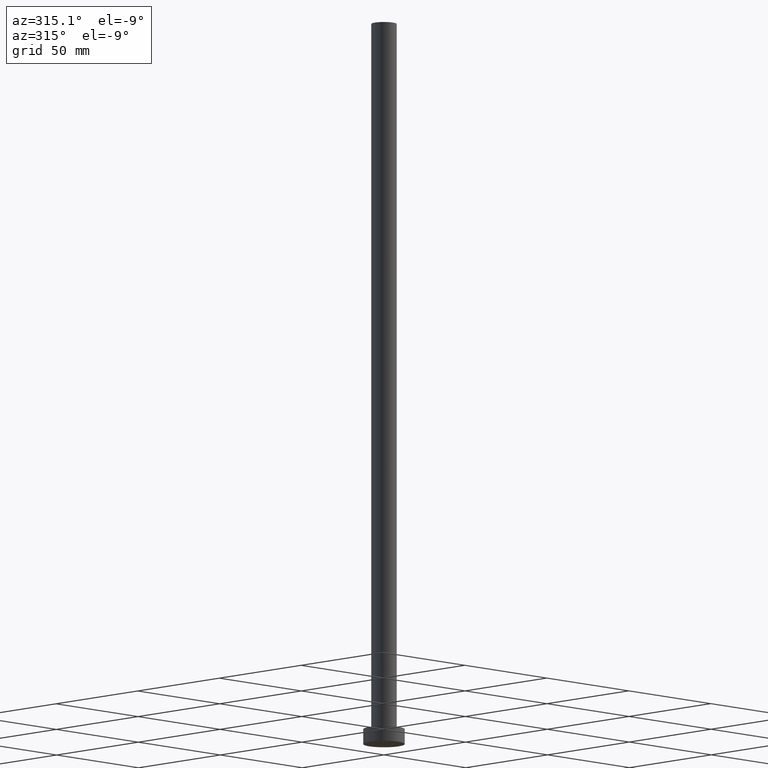
[diagram: clean part render]
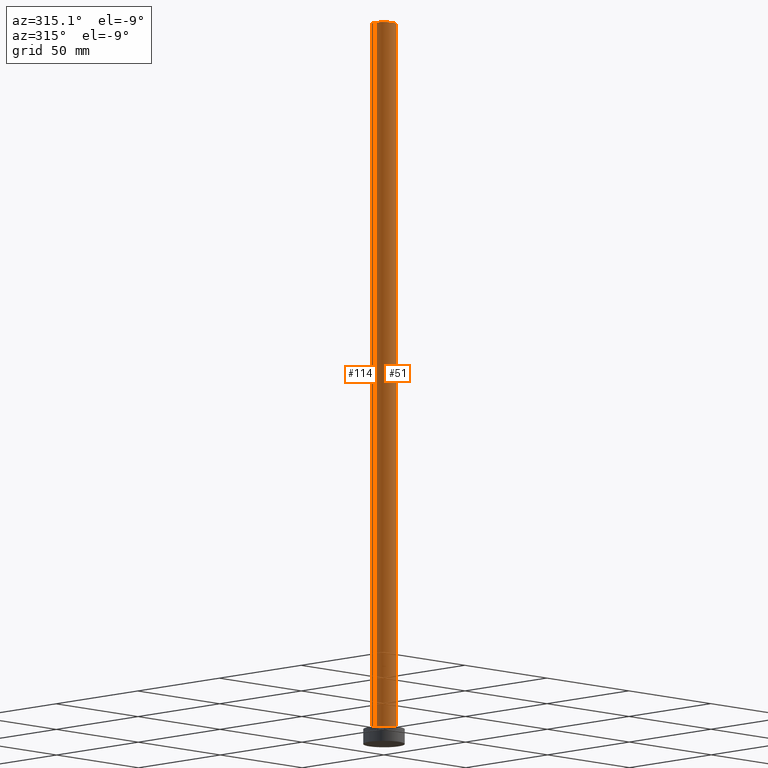
[diagram: same view with one multi-face feature highlighted, each face labeled with its STEP entity id]
A machine part, auxiliary view. The highlighted faces form ONE feature: a constant-radius fillet chain: 2 tangent blend faces with common blend radius 5.5 mm. The faces share edges in the B-rep.
Their STEP definitions:
[1] entity #51 (Cylinder):
#1 = CARTESIAN_POINT ( 'NONE',  ( 5.500000000000000000, 6.735557395310441037E-16, 315.0000000000000000 ) ) ;
#2 = CYLINDRICAL_SURFACE ( 'NONE', #96, 5.500000000000000000 ) ;
#8 = CARTESIAN_POINT ( 'NONE',  ( 0.000000000000000000, 0.000000000000000000, 315.0000000000000000 ) ) ;
#24 = EDGE_CURVE ( 'NONE', #101, #212, #144, .T. ) ;
#27 = CARTESIAN_POINT ( 'NONE',  ( -5.500000000000000000, 0.000000000000000000, 315.0000000000000000 ) ) ;
#36 = ORIENTED_EDGE ( 'NONE', *, *, #111, .F. ) ;
#46 = CARTESIAN_POINT ( 'NONE',  ( 5.500000000000000000, 6.735557395310441037E-16, 315.0000000000000000 ) ) ;
#51 = ADVANCED_FACE ( 'NONE', ( #77 ), #2, .T. ) ;
#56 = EDGE_LOOP ( 'NONE', ( #89, #36, #146, #94 ) ) ;
#65 = DIRECTION ( 'NONE',  ( 0.000000000000000000, 0.000000000000000000, 1.000000000000000000 ) ) ;
#75 = DIRECTION ( 'NONE',  ( -0.000000000000000000, -0.000000000000000000, -1.000000000000000000 ) ) ;
#77 = FACE_OUTER_BOUND ( 'NONE', #56, .T. ) ;
#79 = CARTESIAN_POINT ( 'NONE',  ( 5.500000000000000000, 6.735557395310441037E-16, 6.500000000000000000 ) ) ;
#89 = ORIENTED_EDGE ( 'NONE', *, *, #24, .F. ) ;
#94 = ORIENTED_EDGE ( 'NONE', *, *, #184, .T. ) ;
#95 = AXIS2_PLACEMENT_3D ( 'NONE', #8, #243, #160 ) ;
#96 = AXIS2_PLACEMENT_3D ( 'NONE', #151, #171, #241 ) ;
#100 = DIRECTION ( 'NONE',  ( -0.000000000000000000, -0.000000000000000000, -1.000000000000000000 ) ) ;
#101 = VERTEX_POINT ( 'NONE', #46 ) ;
#104 = CARTESIAN_POINT ( 'NONE',  ( -5.500000000000000000, 0.000000000000000000, 6.500000000000000000 ) ) ;
#108 = EDGE_CURVE ( 'NONE', #178, #216, #245, .T. ) ;
#111 = EDGE_CURVE ( 'NONE', #178, #101, #153, .T. ) ;
#134 = CARTESIAN_POINT ( 'NONE',  ( -5.500000000000000000, 0.000000000000000000, 315.0000000000000000 ) ) ;
#144 = LINE ( 'NONE', #1, #253 ) ;
#146 = ORIENTED_EDGE ( 'NONE', *, *, #108, .T. ) ;
#151 = CARTESIAN_POINT ( 'NONE',  ( 0.000000000000000000, 0.000000000000000000, 315.0000000000000000 ) ) ;
#153 = CIRCLE ( 'NONE', #95, 5.500000000000000000 ) ;
#160 = DIRECTION ( 'NONE',  ( 1.000000000000000000, 0.000000000000000000, 0.000000000000000000 ) ) ;
#171 = DIRECTION ( 'NONE',  ( -0.000000000000000000, -0.000000000000000000, -1.000000000000000000 ) ) ;
#178 = VERTEX_POINT ( 'NONE', #134 ) ;
#184 = EDGE_CURVE ( 'NONE', #216, #212, #191, .T. ) ;
#191 = CIRCLE ( 'NONE', #196, 5.500000000000000000 ) ;
#196 = AXIS2_PLACEMENT_3D ( 'NONE', #224, #65, #227 ) ;
#212 = VERTEX_POINT ( 'NONE', #79 ) ;
#216 = VERTEX_POINT ( 'NONE', #104 ) ;
#224 = CARTESIAN_POINT ( 'NONE',  ( 0.000000000000000000, 0.000000000000000000, 6.500000000000000000 ) ) ;
#227 = DIRECTION ( 'NONE',  ( 1.000000000000000000, 0.000000000000000000, 0.000000000000000000 ) ) ;
#241 = DIRECTION ( 'NONE',  ( -1.000000000000000000, 0.000000000000000000, 0.000000000000000000 ) ) ;
#243 = DIRECTION ( 'NONE',  ( 0.000000000000000000, 0.000000000000000000, 1.000000000000000000 ) ) ;
#245 = LINE ( 'NONE', #27, #246 ) ;
#246 = VECTOR ( 'NONE', #100, 1000.000000000000000 ) ;
#253 = VECTOR ( 'NONE', #75, 1000.000000000000000 ) ;
[2] entity #114 (Cylinder):
#1 = CARTESIAN_POINT ( 'NONE',  ( 5.500000000000000000, 6.735557395310441037E-16, 315.0000000000000000 ) ) ;
#11 = EDGE_CURVE ( 'NONE', #101, #178, #167, .T. ) ;
#20 = CARTESIAN_POINT ( 'NONE',  ( 0.000000000000000000, 0.000000000000000000, 315.0000000000000000 ) ) ;
#22 = DIRECTION ( 'NONE',  ( 1.000000000000000000, 0.000000000000000000, 0.000000000000000000 ) ) ;
#23 = DIRECTION ( 'NONE',  ( 0.000000000000000000, 0.000000000000000000, 1.000000000000000000 ) ) ;
#24 = EDGE_CURVE ( 'NONE', #101, #212, #144, .T. ) ;
#27 = CARTESIAN_POINT ( 'NONE',  ( -5.500000000000000000, 0.000000000000000000, 315.0000000000000000 ) ) ;
#40 = DIRECTION ( 'NONE',  ( -0.000000000000000000, -0.000000000000000000, -1.000000000000000000 ) ) ;
#42 = CIRCLE ( 'NONE', #143, 5.500000000000000000 ) ;
#44 = ORIENTED_EDGE ( 'NONE', *, *, #108, .F. ) ;
#46 = CARTESIAN_POINT ( 'NONE',  ( 5.500000000000000000, 6.735557395310441037E-16, 315.0000000000000000 ) ) ;
#61 = CARTESIAN_POINT ( 'NONE',  ( 0.000000000000000000, 0.000000000000000000, 315.0000000000000000 ) ) ;
#62 = DIRECTION ( 'NONE',  ( -1.000000000000000000, 0.000000000000000000, 0.000000000000000000 ) ) ;
#72 = ORIENTED_EDGE ( 'NONE', *, *, #24, .T. ) ;
#75 = DIRECTION ( 'NONE',  ( -0.000000000000000000, -0.000000000000000000, -1.000000000000000000 ) ) ;
#79 = CARTESIAN_POINT ( 'NONE',  ( 5.500000000000000000, 6.735557395310441037E-16, 6.500000000000000000 ) ) ;
#80 = ORIENTED_EDGE ( 'NONE', *, *, #11, .F. ) ;
#93 = DIRECTION ( 'NONE',  ( 0.000000000000000000, 0.000000000000000000, 1.000000000000000000 ) ) ;
#100 = DIRECTION ( 'NONE',  ( -0.000000000000000000, -0.000000000000000000, -1.000000000000000000 ) ) ;
#101 = VERTEX_POINT ( 'NONE', #46 ) ;
#104 = CARTESIAN_POINT ( 'NONE',  ( -5.500000000000000000, 0.000000000000000000, 6.500000000000000000 ) ) ;
#108 = EDGE_CURVE ( 'NONE', #178, #216, #245, .T. ) ;
#113 = AXIS2_PLACEMENT_3D ( 'NONE', #20, #93, #22 ) ;
#114 = ADVANCED_FACE ( 'NONE', ( #137 ), #220, .T. ) ;
#130 = EDGE_CURVE ( 'NONE', #212, #216, #42, .T. ) ;
#134 = CARTESIAN_POINT ( 'NONE',  ( -5.500000000000000000, 0.000000000000000000, 315.0000000000000000 ) ) ;
#136 = DIRECTION ( 'NONE',  ( 1.000000000000000000, 0.000000000000000000, 0.000000000000000000 ) ) ;
#137 = FACE_OUTER_BOUND ( 'NONE', #183, .T. ) ;
#143 = AXIS2_PLACEMENT_3D ( 'NONE', #158, #23, #136 ) ;
#144 = LINE ( 'NONE', #1, #253 ) ;
#158 = CARTESIAN_POINT ( 'NONE',  ( 0.000000000000000000, 0.000000000000000000, 6.500000000000000000 ) ) ;
#167 = CIRCLE ( 'NONE', #113, 5.500000000000000000 ) ;
#172 = AXIS2_PLACEMENT_3D ( 'NONE', #61, #40, #62 ) ;
#178 = VERTEX_POINT ( 'NONE', #134 ) ;
#183 = EDGE_LOOP ( 'NONE', ( #80, #72, #217, #44 ) ) ;
#212 = VERTEX_POINT ( 'NONE', #79 ) ;
#216 = VERTEX_POINT ( 'NONE', #104 ) ;
#217 = ORIENTED_EDGE ( 'NONE', *, *, #130, .T. ) ;
#220 = CYLINDRICAL_SURFACE ( 'NONE', #172, 5.500000000000000000 ) ;
#245 = LINE ( 'NONE', #27, #246 ) ;
#246 = VECTOR ( 'NONE', #100, 1000.000000000000000 ) ;
#253 = VECTOR ( 'NONE', #75, 1000.000000000000000 ) ;